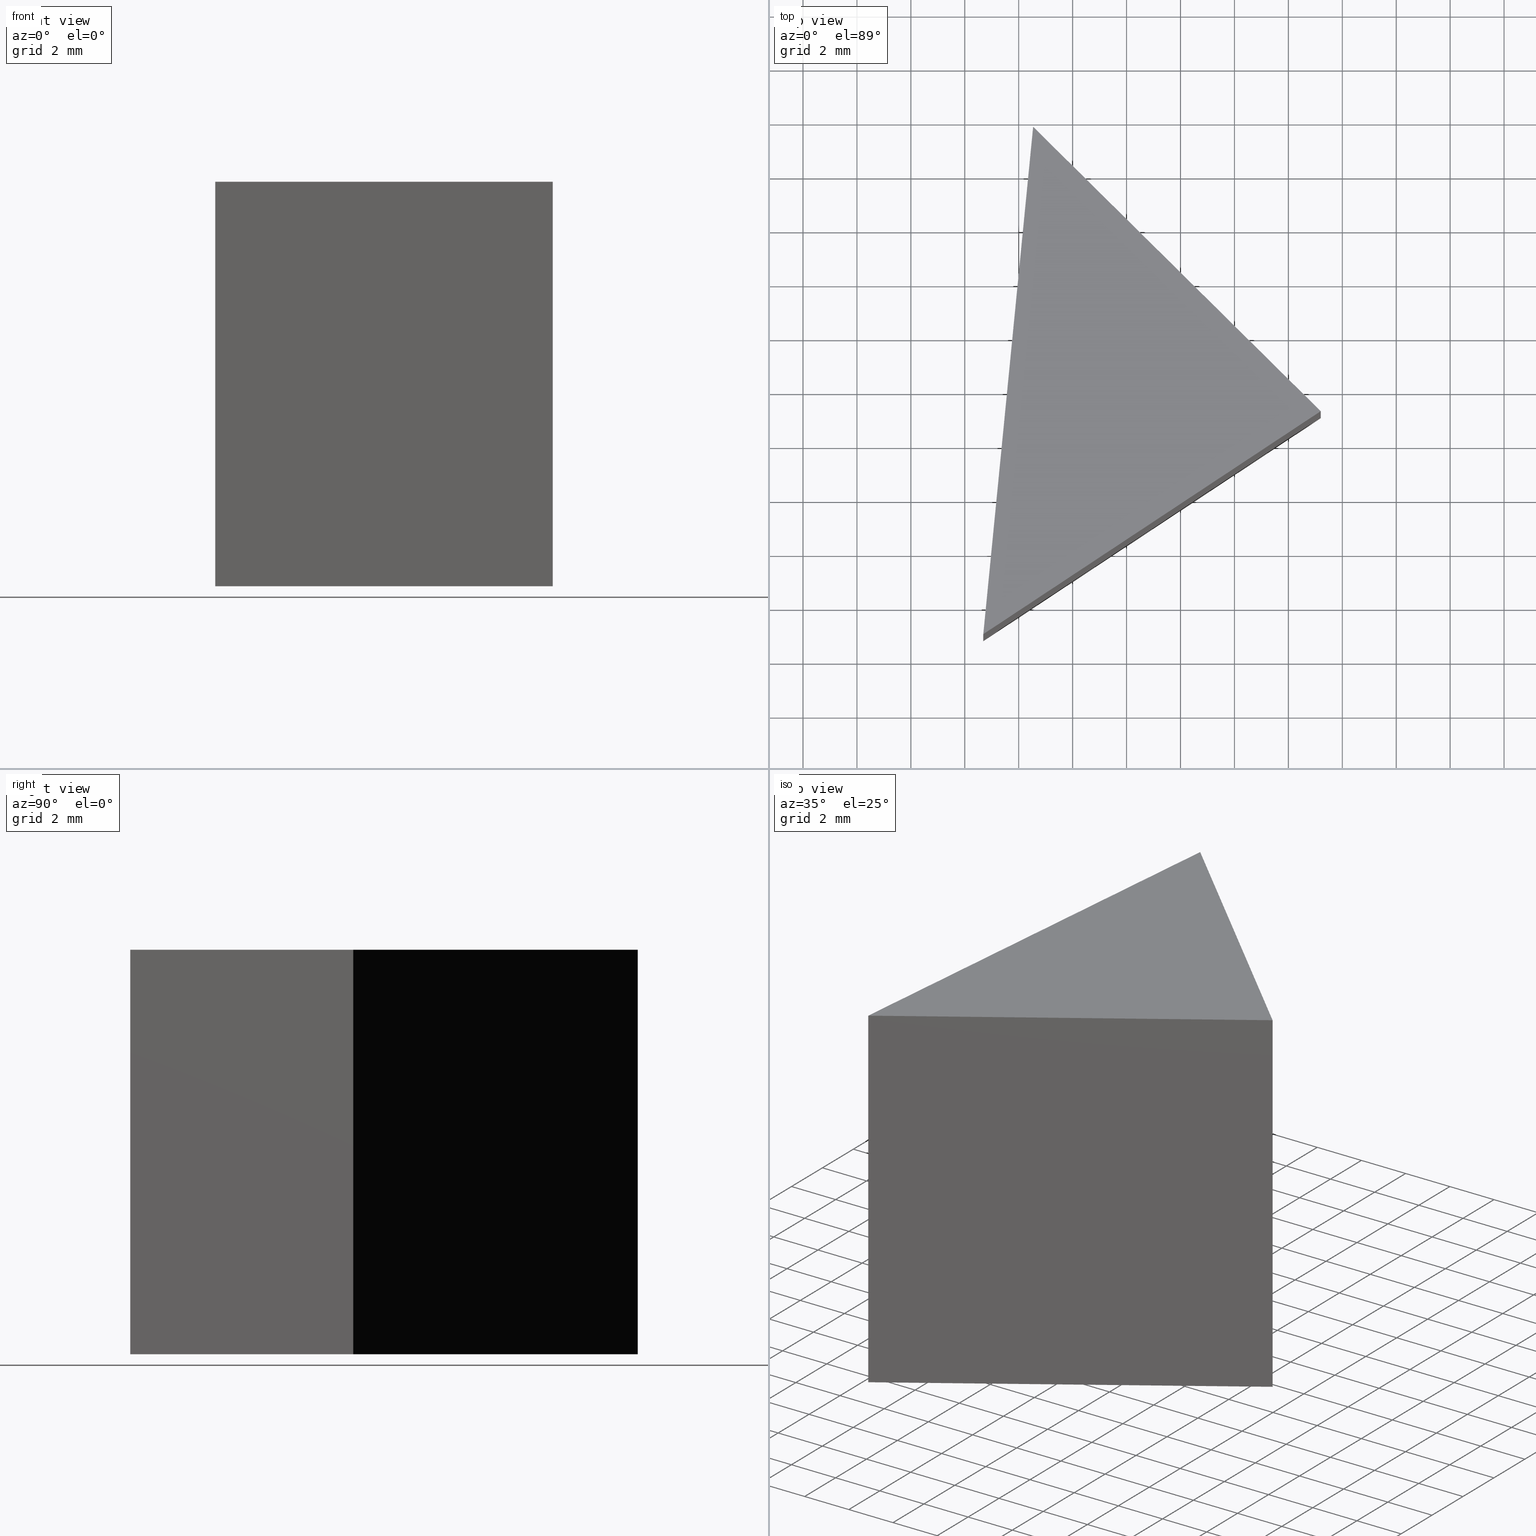
[diagram: canonical four-view strip — front | top / right | iso, engineering-drawing reading convention]
A machine part, canonical four-view strip (front | top / right | iso — engineering-drawing reading convention). The complete STEP part file that produces these views, byte-faithful:
ISO-10303-21;
HEADER;
FILE_DESCRIPTION (( 'STEP AP214' ),
    '1' );
FILE_NAME ('469003.STEP',
    '2019-08-23T02:36:07',
    ( 'user' ),
    ( '΢���й�' ),
    'SwSTEP 2.0',
    'SolidWorks 2016',
    '' );
FILE_SCHEMA (( 'AUTOMOTIVE_DESIGN' ));
ENDSEC;

DATA;
#1 = CARTESIAN_POINT ( 'NONE',  ( 13.19977079032643300, 9.118493995075059600, 15.00000000000000000 ) ) ;
#2 = MECHANICAL_DESIGN_GEOMETRIC_PRESENTATION_REPRESENTATION (  '', ( #20 ), #114 ) ;
#3 = CLOSED_SHELL ( 'NONE', ( #166, #55, #70, #9, #116 ) ) ;
#4 = CARTESIAN_POINT ( 'NONE',  ( 13.19977079032643300, 9.118493995075059600, 0.0000000000000000000 ) ) ;
#5 = CARTESIAN_POINT ( 'NONE',  ( 0.0000000000000000000, 0.0000000000000000000, 15.00000000000000000 ) ) ;
#6 = EDGE_CURVE ( 'NONE', #57, #135, #109, .T. ) ;
#7 = EDGE_LOOP ( 'NONE', ( #74, #94, #143 ) ) ;
#8 = ORIENTED_EDGE ( 'NONE', *, *, #6, .T. ) ;
#9 = ADVANCED_FACE ( 'NONE', ( #148 ), #50, .F. ) ;
#10 =( NAMED_UNIT ( * ) PLANE_ANGLE_UNIT ( ) SI_UNIT ( $, .RADIAN. ) );
#11 = PRESENTATION_STYLE_ASSIGNMENT (( #128 ) ) ;
#12 = PRODUCT_RELATED_PRODUCT_CATEGORY ( 'part', '', ( #40 ) ) ;
#13 = DIRECTION ( 'NONE',  ( -0.5514015260034012000, 0.8342399877260262600, 0.0000000000000000000 ) ) ;
#14 = DIRECTION ( 'NONE',  ( 0.0000000000000000000, 0.0000000000000000000, -1.000000000000000000 ) ) ;
#15 = STYLED_ITEM ( 'NONE', ( #39 ), #38 ) ;
#16 = ADVANCED_BREP_SHAPE_REPRESENTATION ( '469003', ( #38, #52 ), #131 ) ;
#17 = VECTOR ( 'NONE', #84, 1000.000000000000000 ) ;
#18 = VECTOR ( 'NONE', #30, 1000.000000000000100 ) ;
#19 = CARTESIAN_POINT ( 'NONE',  ( 0.6861709744360347000, 0.8474711050240408800, 15.00000000000000000 ) ) ;
#20 = STYLED_ITEM ( 'NONE', ( #11 ), #16 ) ;
#21 = PRESENTATION_LAYER_ASSIGNMENT (  '', '', ( #20 ) ) ;
#22 = VECTOR ( 'NONE', #110, 1000.000000000000100 ) ;
#23 = ORIENTED_EDGE ( 'NONE', *, *, #112, .T. ) ;
#24 = LINE ( 'NONE', #1, #75 ) ;
#25 = PRODUCT_DEFINITION ( 'δ֪', '', #63, #43 ) ;
#26 = FILL_AREA_STYLE_COLOUR ( '', #138 ) ;
#27 = ORIENTED_EDGE ( 'NONE', *, *, #112, .F. ) ;
#28 = EDGE_CURVE ( 'NONE', #113, #129, #96, .T. ) ;
#29 = SHAPE_DEFINITION_REPRESENTATION ( #91, #16 ) ;
#30 = DIRECTION ( 'NONE',  ( -0.09777970958415378700, -0.9952080829623715100, -0.0000000000000000000 ) ) ;
#31 = APPLICATION_PROTOCOL_DEFINITION ( 'draft international standard', 'automotive_design', 1998, #132 ) ;
#32 = ORIENTED_EDGE ( 'NONE', *, *, #106, .F. ) ;
#33 = FACE_OUTER_BOUND ( 'NONE', #64, .T. ) ;
#34 = VECTOR ( 'NONE', #62, 1000.000000000000000 ) ;
#35 = PRESENTATION_LAYER_ASSIGNMENT (  '', '', ( #15 ) ) ;
#36 = ORIENTED_EDGE ( 'NONE', *, *, #93, .T. ) ;
#37 = EDGE_CURVE ( 'NONE', #129, #57, #99, .T. ) ;
#38 = MANIFOLD_SOLID_BREP ( '͹̨-����1', #3 ) ;
#39 = PRESENTATION_STYLE_ASSIGNMENT (( #100 ) ) ;
#40 = PRODUCT ( '469003', '469003', '', ( #155 ) ) ;
#41 = ORIENTED_EDGE ( 'NONE', *, *, #37, .F. ) ;
#42 =( LENGTH_UNIT ( ) NAMED_UNIT ( * ) SI_UNIT ( .MILLI., .METRE. ) );
#43 = PRODUCT_DEFINITION_CONTEXT ( 'detailed design', #81, 'design' ) ;
#44 = VECTOR ( 'NONE', #159, 1000.000000000000000 ) ;
#45 = CARTESIAN_POINT ( 'NONE',  ( 0.0000000000000000000, 0.0000000000000000000, 0.0000000000000000000 ) ) ;
#46 = DIRECTION ( 'NONE',  ( -0.0000000000000000000, -0.0000000000000000000, -1.000000000000000000 ) ) ;
#47 = VERTEX_POINT ( 'NONE', #66 ) ;
#48 = CARTESIAN_POINT ( 'NONE',  ( 13.19977079032643300, 9.118493995075059600, 15.00000000000000000 ) ) ;
#49 = DIRECTION ( 'NONE',  ( 0.9952080829623715100, -0.09777970958415378700, 0.0000000000000000000 ) ) ;
#50 = PLANE ( 'NONE',  #85 ) ;
#51 = ORIENTED_EDGE ( 'NONE', *, *, #37, .T. ) ;
#52 = AXIS2_PLACEMENT_3D ( 'NONE', #45, #58, #71 ) ;
#53 = UNCERTAINTY_MEASURE_WITH_UNIT (LENGTH_MEASURE( 1.000000000000000100E-005 ), #156, 'distance_accuracy_value', 'NONE');
#54 = SURFACE_SIDE_STYLE ('',( #72 ) ) ;
#55 = ADVANCED_FACE ( 'NONE', ( #133 ), #115, .F. ) ;
#56 = LINE ( 'NONE', #19, #22 ) ;
#57 = VERTEX_POINT ( 'NONE', #151 ) ;
#58 = DIRECTION ( 'NONE',  ( 0.0000000000000000000, 0.0000000000000000000, 1.000000000000000000 ) ) ;
#59 = LINE ( 'NONE', #61, #154 ) ;
#60 = CARTESIAN_POINT ( 'NONE',  ( 13.19977079032643300, 9.118493995075059600, 15.00000000000000000 ) ) ;
#61 = CARTESIAN_POINT ( 'NONE',  ( 13.19977079032643300, 9.118493995075059600, 15.00000000000000000 ) ) ;
#62 = DIRECTION ( 'NONE',  ( -0.0000000000000000000, -0.0000000000000000000, -1.000000000000000000 ) ) ;
#63 = PRODUCT_DEFINITION_FORMATION_WITH_SPECIFIED_SOURCE ( '�κ�', '', #40, .NOT_KNOWN. ) ;
#64 = EDGE_LOOP ( 'NONE', ( #139, #27, #101, #126 ) ) ;
#65 = VECTOR ( 'NONE', #76, 1000.000000000000000 ) ;
#66 = CARTESIAN_POINT ( 'NONE',  ( 13.19977079032643300, 9.118493995075059600, 0.0000000000000000000 ) ) ;
#67 = DIRECTION ( 'NONE',  ( 0.8342399877260263700, 0.5514015260034012000, -0.0000000000000000000 ) ) ;
#68 = SURFACE_SIDE_STYLE ('',( #88 ) ) ;
#69 = ORIENTED_EDGE ( 'NONE', *, *, #28, .F. ) ;
#70 = ADVANCED_FACE ( 'NONE', ( #104 ), #136, .F. ) ;
#71 = DIRECTION ( 'NONE',  ( 1.000000000000000000, 0.0000000000000000000, 0.0000000000000000000 ) ) ;
#72 = SURFACE_STYLE_FILL_AREA ( #142 ) ;
#73 = EDGE_CURVE ( 'NONE', #47, #57, #122, .T. ) ;
#74 = ORIENTED_EDGE ( 'NONE', *, *, #97, .F. ) ;
#75 = VECTOR ( 'NONE', #147, 1000.000000000000000 ) ;
#76 = DIRECTION ( 'NONE',  ( -0.7109728236074627200, 0.7032194850056643400, 0.0000000000000000000 ) ) ;
#77 = CARTESIAN_POINT ( 'NONE',  ( 2.535178436214490500, 19.66678627016002400, 15.00000000000000000 ) ) ;
#78 = ORIENTED_EDGE ( 'NONE', *, *, #73, .T. ) ;
#79 =( GEOMETRIC_REPRESENTATION_CONTEXT ( 3 ) GLOBAL_UNCERTAINTY_ASSIGNED_CONTEXT ( ( #140 ) ) GLOBAL_UNIT_ASSIGNED_CONTEXT ( ( #42, #164, #89 ) ) REPRESENTATION_CONTEXT ( 'NONE', 'WORKASPACE' ) );
#80 = EDGE_LOOP ( 'NONE', ( #78, #41, #69, #23 ) ) ;
#81 = APPLICATION_CONTEXT ( 'automotive_design' ) ;
#82 =( NAMED_UNIT ( * ) PLANE_ANGLE_UNIT ( ) SI_UNIT ( $, .RADIAN. ) );
#83 = DIRECTION ( 'NONE',  ( -1.000000000000000000, 0.0000000000000000000, 0.0000000000000000000 ) ) ;
#84 = DIRECTION ( 'NONE',  ( -0.7109728236074627200, 0.7032194850056643400, 0.0000000000000000000 ) ) ;
#85 = AXIS2_PLACEMENT_3D ( 'NONE', #5, #111, #160 ) ;
#86 = LINE ( 'NONE', #144, #44 ) ;
#87 = EDGE_LOOP ( 'NONE', ( #8, #32, #153, #51 ) ) ;
#88 = SURFACE_STYLE_FILL_AREA ( #119 ) ;
#89 =( NAMED_UNIT ( * ) SI_UNIT ( $, .STERADIAN. ) SOLID_ANGLE_UNIT ( ) );
#90 = VECTOR ( 'NONE', #67, 1000.000000000000000 ) ;
#91 = PRODUCT_DEFINITION_SHAPE ( 'NONE', 'NONE',  #25 ) ;
#92 = CARTESIAN_POINT ( 'NONE',  ( 0.6861709744360347000, 0.8474711050240408800, 15.00000000000000000 ) ) ;
#93 = EDGE_CURVE ( 'NONE', #129, #165, #56, .T. ) ;
#94 = ORIENTED_EDGE ( 'NONE', *, *, #6, .F. ) ;
#95 = CARTESIAN_POINT ( 'NONE',  ( 13.19977079032643300, 9.118493995075059600, 0.0000000000000000000 ) ) ;
#96 = LINE ( 'NONE', #48, #65 ) ;
#97 = EDGE_CURVE ( 'NONE', #135, #47, #152, .T. ) ;
#98 = ORIENTED_EDGE ( 'NONE', *, *, #163, .T. ) ;
#99 = LINE ( 'NONE', #108, #34 ) ;
#100 = SURFACE_STYLE_USAGE ( .BOTH. , #54 ) ;
#101 = ORIENTED_EDGE ( 'NONE', *, *, #163, .F. ) ;
#102 = AXIS2_PLACEMENT_3D ( 'NONE', #107, #14, #83 ) ;
#103 = FILL_AREA_STYLE_COLOUR ( '', #118 ) ;
#104 = FACE_OUTER_BOUND ( 'NONE', #87, .T. ) ;
#105 = DIRECTION ( 'NONE',  ( -0.8342399877260262600, -0.5514015260034012000, 0.0000000000000000000 ) ) ;
#106 = EDGE_CURVE ( 'NONE', #165, #135, #86, .T. ) ;
#107 = CARTESIAN_POINT ( 'NONE',  ( 0.0000000000000000000, 0.0000000000000000000, 0.0000000000000000000 ) ) ;
#108 = CARTESIAN_POINT ( 'NONE',  ( 2.535178436214490500, 19.66678627016002400, 15.00000000000000000 ) ) ;
#109 = LINE ( 'NONE', #125, #18 ) ;
#110 = DIRECTION ( 'NONE',  ( -0.09777970958415378700, -0.9952080829623715100, -0.0000000000000000000 ) ) ;
#111 = DIRECTION ( 'NONE',  ( 0.0000000000000000000, 0.0000000000000000000, -1.000000000000000000 ) ) ;
#112 = EDGE_CURVE ( 'NONE', #113, #47, #59, .T. ) ;
#113 = VERTEX_POINT ( 'NONE', #149 ) ;
#114 =( GEOMETRIC_REPRESENTATION_CONTEXT ( 3 ) GLOBAL_UNCERTAINTY_ASSIGNED_CONTEXT ( ( #161 ) ) GLOBAL_UNIT_ASSIGNED_CONTEXT ( ( #169, #10, #130 ) ) REPRESENTATION_CONTEXT ( 'NONE', 'WORKASPACE' ) );
#115 = PLANE ( 'NONE',  #168 ) ;
#116 = ADVANCED_FACE ( 'NONE', ( #145 ), #120, .T. ) ;
#117 = CARTESIAN_POINT ( 'NONE',  ( 0.6861709744360347000, 0.8474711050240408800, 15.00000000000000000 ) ) ;
#118 = COLOUR_RGB ( '',1.000000000000000000, 1.000000000000000000, 1.000000000000000000 ) ;
#119 = FILL_AREA_STYLE ('',( #103 ) ) ;
#120 = PLANE ( 'NONE',  #102 ) ;
#121 = AXIS2_PLACEMENT_3D ( 'NONE', #117, #49, #123 ) ;
#122 = LINE ( 'NONE', #95, #17 ) ;
#123 = DIRECTION ( 'NONE',  ( 0.09777970958415378700, 0.9952080829623715100, 0.0000000000000000000 ) ) ;
#124 = MECHANICAL_DESIGN_GEOMETRIC_PRESENTATION_REPRESENTATION (  '', ( #15 ), #79 ) ;
#125 = CARTESIAN_POINT ( 'NONE',  ( 0.6861709744360347000, 0.8474711050240408800, 0.0000000000000000000 ) ) ;
#126 = ORIENTED_EDGE ( 'NONE', *, *, #106, .T. ) ;
#127 = DIRECTION ( 'NONE',  ( -0.7032194850056643400, -0.7109728236074627200, 0.0000000000000000000 ) ) ;
#128 = SURFACE_STYLE_USAGE ( .BOTH. , #68 ) ;
#129 = VERTEX_POINT ( 'NONE', #77 ) ;
#130 =( NAMED_UNIT ( * ) SI_UNIT ( $, .STERADIAN. ) SOLID_ANGLE_UNIT ( ) );
#131 =( GEOMETRIC_REPRESENTATION_CONTEXT ( 3 ) GLOBAL_UNCERTAINTY_ASSIGNED_CONTEXT ( ( #53 ) ) GLOBAL_UNIT_ASSIGNED_CONTEXT ( ( #156, #82, #146 ) ) REPRESENTATION_CONTEXT ( 'NONE', 'WORKASPACE' ) );
#132 = APPLICATION_CONTEXT ( 'automotive_design' ) ;
#133 = FACE_OUTER_BOUND ( 'NONE', #80, .T. ) ;
#134 = PLANE ( 'NONE',  #141 ) ;
#135 = VERTEX_POINT ( 'NONE', #157 ) ;
#136 = PLANE ( 'NONE',  #121 ) ;
#137 = DIRECTION ( 'NONE',  ( 0.7109728236074627200, -0.7032194850056643400, 0.0000000000000000000 ) ) ;
#138 = COLOUR_RGB ( '',1.000000000000000000, 1.000000000000000000, 1.000000000000000000 ) ;
#139 = ORIENTED_EDGE ( 'NONE', *, *, #97, .T. ) ;
#140 = UNCERTAINTY_MEASURE_WITH_UNIT (LENGTH_MEASURE( 1.000000000000000100E-005 ), #42, 'distance_accuracy_value', 'NONE');
#141 = AXIS2_PLACEMENT_3D ( 'NONE', #60, #13, #105 ) ;
#142 = FILL_AREA_STYLE ('',( #26 ) ) ;
#143 = ORIENTED_EDGE ( 'NONE', *, *, #73, .F. ) ;
#144 = CARTESIAN_POINT ( 'NONE',  ( 0.6861709744360347000, 0.8474711050240408800, 15.00000000000000000 ) ) ;
#145 = FACE_OUTER_BOUND ( 'NONE', #7, .T. ) ;
#146 =( NAMED_UNIT ( * ) SI_UNIT ( $, .STERADIAN. ) SOLID_ANGLE_UNIT ( ) );
#147 = DIRECTION ( 'NONE',  ( 0.8342399877260263700, 0.5514015260034012000, -0.0000000000000000000 ) ) ;
#148 = FACE_OUTER_BOUND ( 'NONE', #162, .T. ) ;
#149 = CARTESIAN_POINT ( 'NONE',  ( 13.19977079032643300, 9.118493995075059600, 15.00000000000000000 ) ) ;
#150 = CARTESIAN_POINT ( 'NONE',  ( 13.19977079032643300, 9.118493995075059600, 15.00000000000000000 ) ) ;
#151 = CARTESIAN_POINT ( 'NONE',  ( 2.535178436214490500, 19.66678627016002400, 0.0000000000000000000 ) ) ;
#152 = LINE ( 'NONE', #4, #90 ) ;
#153 = ORIENTED_EDGE ( 'NONE', *, *, #93, .F. ) ;
#154 = VECTOR ( 'NONE', #46, 1000.000000000000000 ) ;
#155 = PRODUCT_CONTEXT ( 'NONE', #132, 'mechanical' ) ;
#156 =( LENGTH_UNIT ( ) NAMED_UNIT ( * ) SI_UNIT ( .MILLI., .METRE. ) );
#157 = CARTESIAN_POINT ( 'NONE',  ( 0.6861709744360347000, 0.8474711050240408800, 0.0000000000000000000 ) ) ;
#158 = ORIENTED_EDGE ( 'NONE', *, *, #28, .T. ) ;
#159 = DIRECTION ( 'NONE',  ( -0.0000000000000000000, -0.0000000000000000000, -1.000000000000000000 ) ) ;
#160 = DIRECTION ( 'NONE',  ( -1.000000000000000000, 0.0000000000000000000, 0.0000000000000000000 ) ) ;
#161 = UNCERTAINTY_MEASURE_WITH_UNIT (LENGTH_MEASURE( 1.000000000000000100E-005 ), #169, 'distance_accuracy_value', 'NONE');
#162 = EDGE_LOOP ( 'NONE', ( #98, #158, #36 ) ) ;
#163 = EDGE_CURVE ( 'NONE', #165, #113, #24, .T. ) ;
#164 =( NAMED_UNIT ( * ) PLANE_ANGLE_UNIT ( ) SI_UNIT ( $, .RADIAN. ) );
#165 = VERTEX_POINT ( 'NONE', #92 ) ;
#166 = ADVANCED_FACE ( 'NONE', ( #33 ), #134, .F. ) ;
#167 = APPLICATION_PROTOCOL_DEFINITION ( 'draft international standard', 'automotive_design', 1998, #81 ) ;
#168 = AXIS2_PLACEMENT_3D ( 'NONE', #150, #127, #137 ) ;
#169 =( LENGTH_UNIT ( ) NAMED_UNIT ( * ) SI_UNIT ( .MILLI., .METRE. ) );
ENDSEC;
END-ISO-10303-21;
